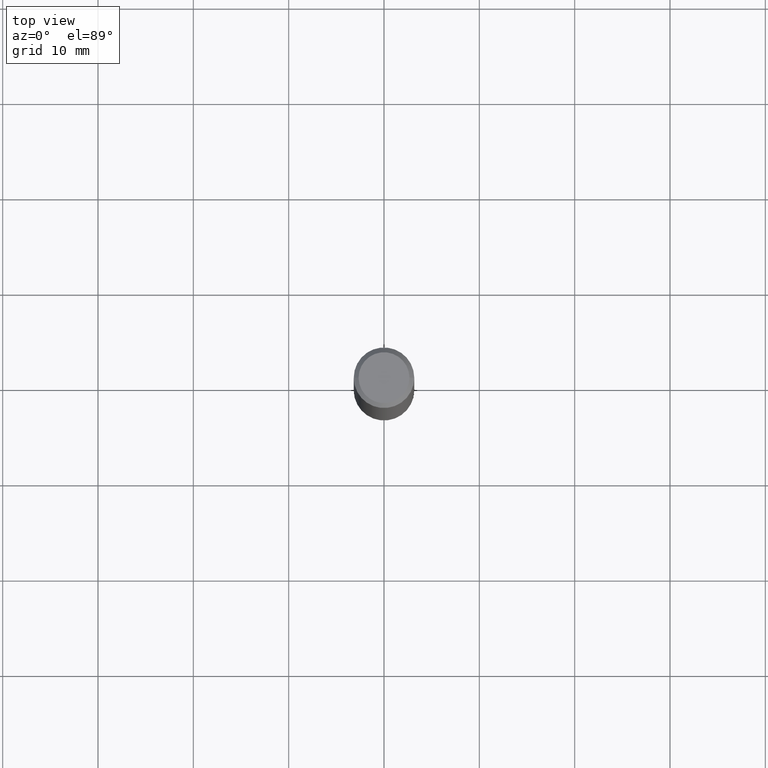
[diagram: clean part render]
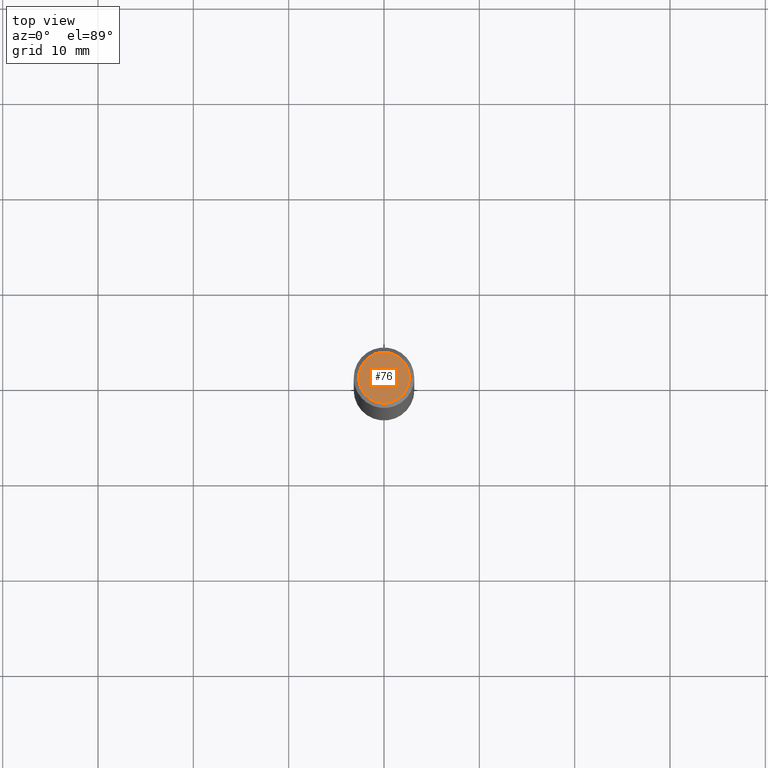
[diagram: same view with one face highlighted and labeled with its STEP entity id]
A machine part, top view. The second image highlights one B-rep face of the part: STEP entity #76.
In plain terms, the highlighted planar face has unit normal (0, -0, -1).
Its self-contained STEP definition (entity closure, byte-faithful):
#8 = FACE_OUTER_BOUND ( 'NONE', #107, .T. ) ;
#29 = DIRECTION ( 'NONE',  ( 1.000000000000000000, -6.982962677686267499E-15, 4.874400871621236533E-29 ) ) ;
#41 = CARTESIAN_POINT ( 'NONE',  ( -0.1050000000000000377, 7.681258945454890818E-16, -5.122214988121018004E-17 ) ) ;
#65 = ORIENTED_EDGE ( 'NONE', *, *, #415, .T. ) ;
#70 = CARTESIAN_POINT ( 'NONE',  ( 7.332110811570581229E-16, 0.1050000000000000377, -3.922166155191328542E-16 ) ) ;
#71 = PLANE ( 'NONE',  #292 ) ;
#76 = ADVANCED_FACE ( 'NONE', ( #8 ), #71, .F. ) ;
#105 = CIRCLE ( 'NONE', #155, 0.1050000000000000377 ) ;
#107 = EDGE_LOOP ( 'NONE', ( #65, #376 ) ) ;
#110 = DIRECTION ( 'NONE',  ( 1.000000000000000000, -6.982962677686267499E-15, 4.874400871621236533E-29 ) ) ;
#137 = VERTEX_POINT ( 'NONE', #41 ) ;
#155 = AXIS2_PLACEMENT_3D ( 'NONE', #239, #369, #110 ) ;
#161 = CARTESIAN_POINT ( 'NONE',  ( 1.252621697202263706E-45, -1.788411804456536750E-31, -5.122214988120493535E-17 ) ) ;
#196 = DIRECTION ( 'NONE',  ( -1.000000000000000000, 6.982962677686265922E-15, -4.876176775795935793E-29 ) ) ;
#235 = CIRCLE ( 'NONE', #293, 0.1050000000000000377 ) ;
#239 = CARTESIAN_POINT ( 'NONE',  ( 1.252621697202263706E-45, -1.788411804456536750E-31, -5.122214988120493535E-17 ) ) ;
#288 = EDGE_CURVE ( 'NONE', #342, #137, #105, .T. ) ;
#292 = AXIS2_PLACEMENT_3D ( 'NONE', #70, #391, #196 ) ;
#293 = AXIS2_PLACEMENT_3D ( 'NONE', #161, #357, #29 ) ;
#339 = CARTESIAN_POINT ( 'NONE',  ( 0.1050000000000000377, -8.238720831321576644E-16, -5.122214988119949344E-17 ) ) ;
#342 = VERTEX_POINT ( 'NONE', #339 ) ;
#357 = DIRECTION ( 'NONE',  ( -2.445468806185136597E-29, 3.491481338843145583E-15, 1.000000000000000000 ) ) ;
#369 = DIRECTION ( 'NONE',  ( -2.445468806185136597E-29, 3.491481338843145583E-15, 1.000000000000000000 ) ) ;
#376 = ORIENTED_EDGE ( 'NONE', *, *, #288, .T. ) ;
#391 = DIRECTION ( 'NONE',  ( 2.438088387897960049E-29, -3.491481338843145188E-15, -1.000000000000000000 ) ) ;
#415 = EDGE_CURVE ( 'NONE', #137, #342, #235, .T. ) ;